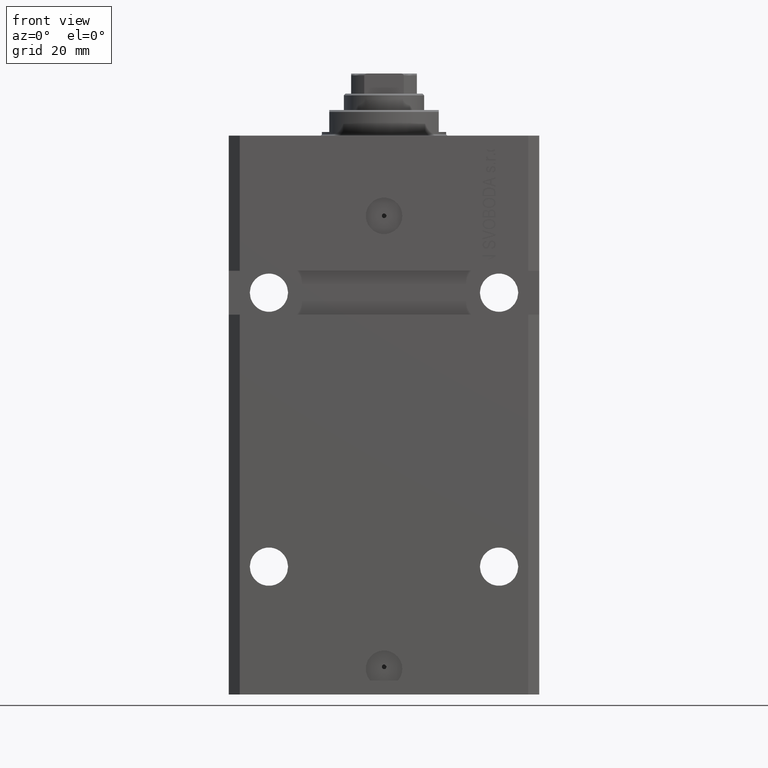
[diagram: clean part render]
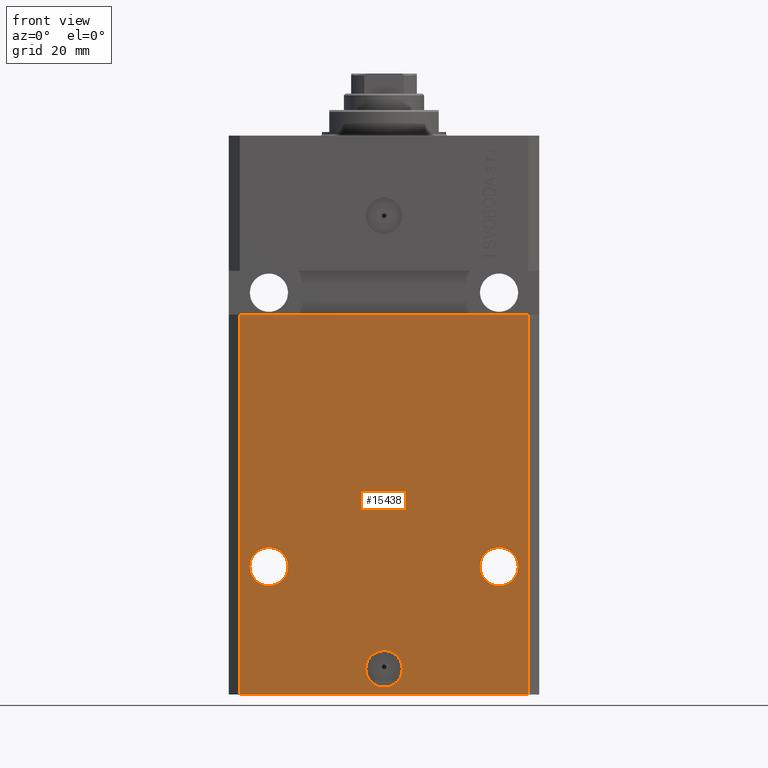
[diagram: same view with one face highlighted and labeled with its STEP entity id]
A machine part, front view. The second image highlights one B-rep face of the part: STEP entity #15438.
In plain terms, the highlighted planar face has unit normal (0, -1, 0).
Its self-contained STEP definition (entity closure, byte-faithful):
#624 = CIRCLE ( 'NONE', #33578, 5.000000000000006217 ) ;
#1034 = LINE ( 'NONE', #29033, #1268 ) ;
#1268 = VECTOR ( 'NONE', #11599, 1000.000000000000000 ) ;
#1292 = VERTEX_POINT ( 'NONE', #2537 ) ;
#1880 = DIRECTION ( 'NONE',  ( 1.000000000000000000, 0.000000000000000000, 0.000000000000000000 ) ) ;
#1984 = CIRCLE ( 'NONE', #12271, 5.249999999999997335 ) ;
#2293 = EDGE_CURVE ( 'NONE', #33149, #26984, #14803, .T. ) ;
#2537 = CARTESIAN_POINT ( 'NONE',  ( -36.75000000000001421, -31.50000000000000711, -118.0000000000000000 ) ) ;
#2696 = DIRECTION ( 'NONE',  ( 1.000000000000000000, 0.000000000000000000, 0.000000000000000000 ) ) ;
#2825 = FACE_BOUND ( 'NONE', #27102, .T. ) ;
#3135 = EDGE_LOOP ( 'NONE', ( #3880, #26740, #25893, #12820 ) ) ;
#3880 = ORIENTED_EDGE ( 'NONE', *, *, #40231, .F. ) ;
#4432 = CARTESIAN_POINT ( 'NONE',  ( 5.000000000000006217, -31.50000000000000000, -146.0000000000000000 ) ) ;
#5089 = DIRECTION ( 'NONE',  ( 1.176083712526788232E-16, -1.000000000000000000, 0.000000000000000000 ) ) ;
#5349 = EDGE_LOOP ( 'NONE', ( #32779, #41247 ) ) ;
#6507 = AXIS2_PLACEMENT_3D ( 'NONE', #28008, #16798, #13559 ) ;
#7183 = DIRECTION ( 'NONE',  ( 1.000000000000000000, 1.632680918566406054E-16, 1.632680918566406054E-16 ) ) ;
#8508 = EDGE_CURVE ( 'NONE', #33149, #36139, #26380, .T. ) ;
#8763 = CARTESIAN_POINT ( 'NONE',  ( 0.000000000000000000, -31.50000000000000000, -146.0000000000000000 ) ) ;
#8892 = CARTESIAN_POINT ( 'NONE',  ( 0.000000000000000000, -31.50000000000000000, -146.0000000000000000 ) ) ;
#9638 = EDGE_CURVE ( 'NONE', #14285, #28171, #37033, .T. ) ;
#10549 = VECTOR ( 'NONE', #10926, 1000.000000000000000 ) ;
#10926 = DIRECTION ( 'NONE',  ( 0.000000000000000000, 0.000000000000000000, 1.000000000000000000 ) ) ;
#11599 = DIRECTION ( 'NONE',  ( 0.000000000000000000, 0.000000000000000000, 1.000000000000000000 ) ) ;
#12271 = AXIS2_PLACEMENT_3D ( 'NONE', #40808, #39965, #30929 ) ;
#12547 = CARTESIAN_POINT ( 'NONE',  ( -5.000000000000006217, -31.50000000000000000, -146.0000000000000000 ) ) ;
#12820 = ORIENTED_EDGE ( 'NONE', *, *, #40974, .T. ) ;
#13559 = DIRECTION ( 'NONE',  ( 1.000000000000000000, 0.000000000000000000, 0.000000000000000000 ) ) ;
#14047 = CARTESIAN_POINT ( 'NONE',  ( -31.50000000000001421, -31.50000000000000711, -118.0000000000000000 ) ) ;
#14285 = VERTEX_POINT ( 'NONE', #12547 ) ;
#14803 = LINE ( 'NONE', #35221, #10549 ) ;
#15410 = DIRECTION ( 'NONE',  ( 1.176083712526788232E-16, -1.000000000000000000, 0.000000000000000000 ) ) ;
#15438 = ADVANCED_FACE ( 'NONE', ( #20270, #34247, #2825, #16838 ), #23493, .T. ) ;
#16017 = DIRECTION ( 'NONE',  ( 1.176083712526788232E-16, -1.000000000000000000, 0.000000000000000000 ) ) ;
#16089 = DIRECTION ( 'NONE',  ( 1.000000000000000000, 0.000000000000000000, 0.000000000000000000 ) ) ;
#16731 = ORIENTED_EDGE ( 'NONE', *, *, #9638, .F. ) ;
#16798 = DIRECTION ( 'NONE',  ( 1.176083712526788232E-16, -1.000000000000000000, 0.000000000000000000 ) ) ;
#16838 = FACE_OUTER_BOUND ( 'NONE', #3135, .T. ) ;
#16942 = ORIENTED_EDGE ( 'NONE', *, *, #19128, .F. ) ;
#17566 = EDGE_CURVE ( 'NONE', #28171, #14285, #624, .T. ) ;
#17581 = CARTESIAN_POINT ( 'NONE',  ( -39.50000000000000000, -31.50000000000000711, -48.99999999999999289 ) ) ;
#18244 = CIRCLE ( 'NONE', #6507, 5.249999999999997335 ) ;
#19128 = EDGE_CURVE ( 'NONE', #1292, #22964, #44663, .T. ) ;
#19449 = AXIS2_PLACEMENT_3D ( 'NONE', #8892, #16017, #2696 ) ;
#20188 = DIRECTION ( 'NONE',  ( 1.000000000000000000, 0.000000000000000000, 0.000000000000000000 ) ) ;
#20270 = FACE_BOUND ( 'NONE', #33955, .T. ) ;
#20309 = VECTOR ( 'NONE', #7183, 1000.000000000000000 ) ;
#21205 = CARTESIAN_POINT ( 'NONE',  ( 36.75000000000001421, -31.49999999999999289, -118.0000000000000000 ) ) ;
#22964 = VERTEX_POINT ( 'NONE', #24886 ) ;
#23148 = EDGE_CURVE ( 'NONE', #29300, #25887, #24129, .T. ) ;
#23493 = PLANE ( 'NONE',  #29153 ) ;
#24129 = CIRCLE ( 'NONE', #32889, 5.249999999999997335 ) ;
#24158 = DIRECTION ( 'NONE',  ( 0.000000000000000000, -0.000000000000000000, -1.000000000000000000 ) ) ;
#24886 = CARTESIAN_POINT ( 'NONE',  ( -26.25000000000001776, -31.50000000000000711, -118.0000000000000000 ) ) ;
#25778 = ORIENTED_EDGE ( 'NONE', *, *, #17566, .F. ) ;
#25887 = VERTEX_POINT ( 'NONE', #21205 ) ;
#25893 = ORIENTED_EDGE ( 'NONE', *, *, #8508, .T. ) ;
#26380 = LINE ( 'NONE', #41059, #26710 ) ;
#26710 = VECTOR ( 'NONE', #20188, 1000.000000000000000 ) ;
#26740 = ORIENTED_EDGE ( 'NONE', *, *, #2293, .F. ) ;
#26984 = VERTEX_POINT ( 'NONE', #17581 ) ;
#27102 = EDGE_LOOP ( 'NONE', ( #33219, #16942 ) ) ;
#28008 = CARTESIAN_POINT ( 'NONE',  ( 31.50000000000001421, -31.49999999999999289, -118.0000000000000000 ) ) ;
#28046 = DIRECTION ( 'NONE',  ( 1.176083712526788232E-16, -1.000000000000000000, 0.000000000000000000 ) ) ;
#28171 = VERTEX_POINT ( 'NONE', #4432 ) ;
#29033 = CARTESIAN_POINT ( 'NONE',  ( 39.50000000000000711, -31.50000000000000000, -153.0000000000000000 ) ) ;
#29054 = CARTESIAN_POINT ( 'NONE',  ( 39.50000000000000711, -31.50000000000000000, -153.0000000000000000 ) ) ;
#29153 = AXIS2_PLACEMENT_3D ( 'NONE', #38151, #31022, #24158 ) ;
#29300 = VERTEX_POINT ( 'NONE', #39974 ) ;
#29990 = AXIS2_PLACEMENT_3D ( 'NONE', #14047, #28046, #42491 ) ;
#30929 = DIRECTION ( 'NONE',  ( -1.000000000000000000, 0.000000000000000000, 0.000000000000000000 ) ) ;
#31022 = DIRECTION ( 'NONE',  ( 0.000000000000000000, -1.000000000000000000, 0.000000000000000000 ) ) ;
#31716 = CARTESIAN_POINT ( 'NONE',  ( -42.50000000000001421, -31.50000000000000711, -48.99999999999999289 ) ) ;
#32779 = ORIENTED_EDGE ( 'NONE', *, *, #44698, .F. ) ;
#32889 = AXIS2_PLACEMENT_3D ( 'NONE', #36272, #15410, #16089 ) ;
#33149 = VERTEX_POINT ( 'NONE', #35252 ) ;
#33219 = ORIENTED_EDGE ( 'NONE', *, *, #40458, .F. ) ;
#33578 = AXIS2_PLACEMENT_3D ( 'NONE', #8763, #5089, #1880 ) ;
#33955 = EDGE_LOOP ( 'NONE', ( #25778, #16731 ) ) ;
#34247 = FACE_BOUND ( 'NONE', #5349, .T. ) ;
#35221 = CARTESIAN_POINT ( 'NONE',  ( -39.50000000000000711, -31.50000000000000000, -153.0000000000000000 ) ) ;
#35252 = CARTESIAN_POINT ( 'NONE',  ( -39.50000000000000711, -31.50000000000000000, -153.0000000000000000 ) ) ;
#36139 = VERTEX_POINT ( 'NONE', #29054 ) ;
#36272 = CARTESIAN_POINT ( 'NONE',  ( 31.50000000000001421, -31.49999999999999289, -118.0000000000000000 ) ) ;
#37033 = CIRCLE ( 'NONE', #19449, 5.000000000000006217 ) ;
#38151 = CARTESIAN_POINT ( 'NONE',  ( -39.50000000000000711, -31.50000000000000000, -153.0000000000000000 ) ) ;
#39965 = DIRECTION ( 'NONE',  ( 1.176083712526788232E-16, -1.000000000000000000, 0.000000000000000000 ) ) ;
#39974 = CARTESIAN_POINT ( 'NONE',  ( 26.25000000000001776, -31.49999999999999289, -118.0000000000000000 ) ) ;
#40231 = EDGE_CURVE ( 'NONE', #26984, #42293, #45027, .T. ) ;
#40458 = EDGE_CURVE ( 'NONE', #22964, #1292, #1984, .T. ) ;
#40808 = CARTESIAN_POINT ( 'NONE',  ( -31.50000000000001421, -31.50000000000000711, -118.0000000000000000 ) ) ;
#40974 = EDGE_CURVE ( 'NONE', #36139, #42293, #1034, .T. ) ;
#41059 = CARTESIAN_POINT ( 'NONE',  ( -39.50000000000000711, -31.50000000000000000, -153.0000000000000000 ) ) ;
#41247 = ORIENTED_EDGE ( 'NONE', *, *, #23148, .F. ) ;
#42293 = VERTEX_POINT ( 'NONE', #42904 ) ;
#42491 = DIRECTION ( 'NONE',  ( -1.000000000000000000, 0.000000000000000000, 0.000000000000000000 ) ) ;
#42904 = CARTESIAN_POINT ( 'NONE',  ( 39.50000000000000000, -31.49999999999999289, -48.99999999999997868 ) ) ;
#44663 = CIRCLE ( 'NONE', #29990, 5.249999999999997335 ) ;
#44698 = EDGE_CURVE ( 'NONE', #25887, #29300, #18244, .T. ) ;
#45027 = LINE ( 'NONE', #31716, #20309 ) ;